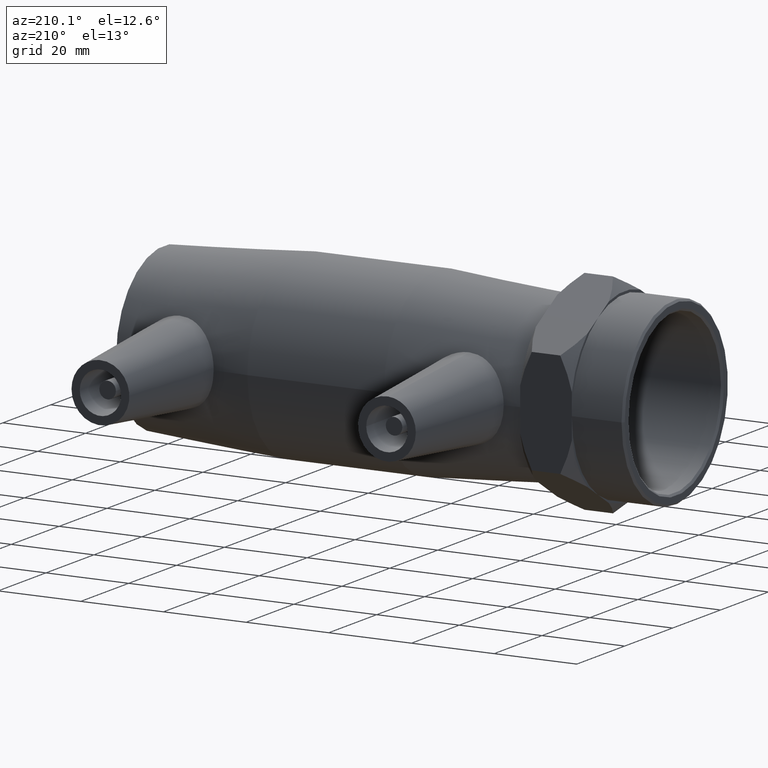
[diagram: clean part render]
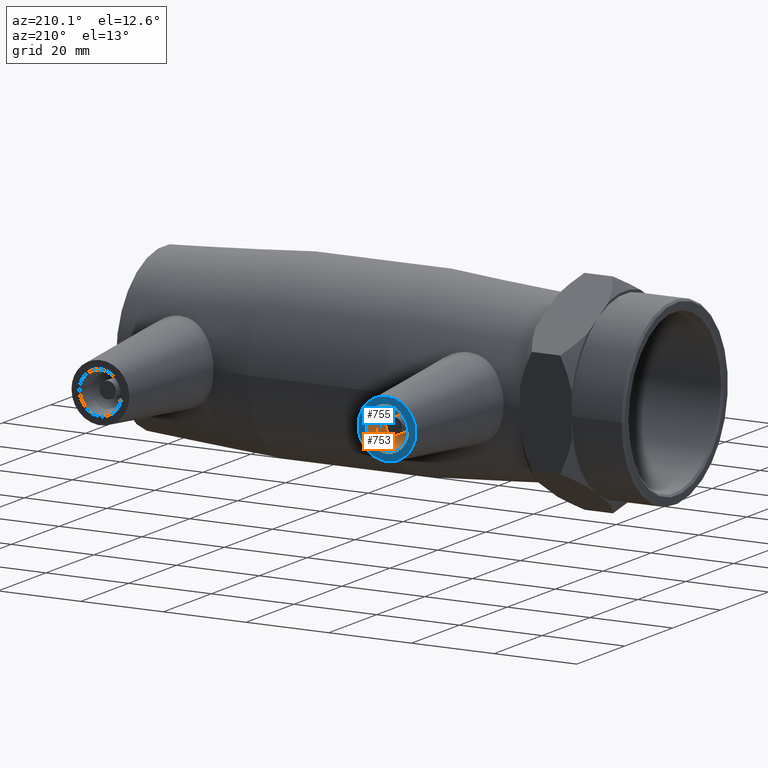
[diagram: same view with the hole feature highlighted: cylindrical wall and planar end face, labeled with their STEP entity ids]
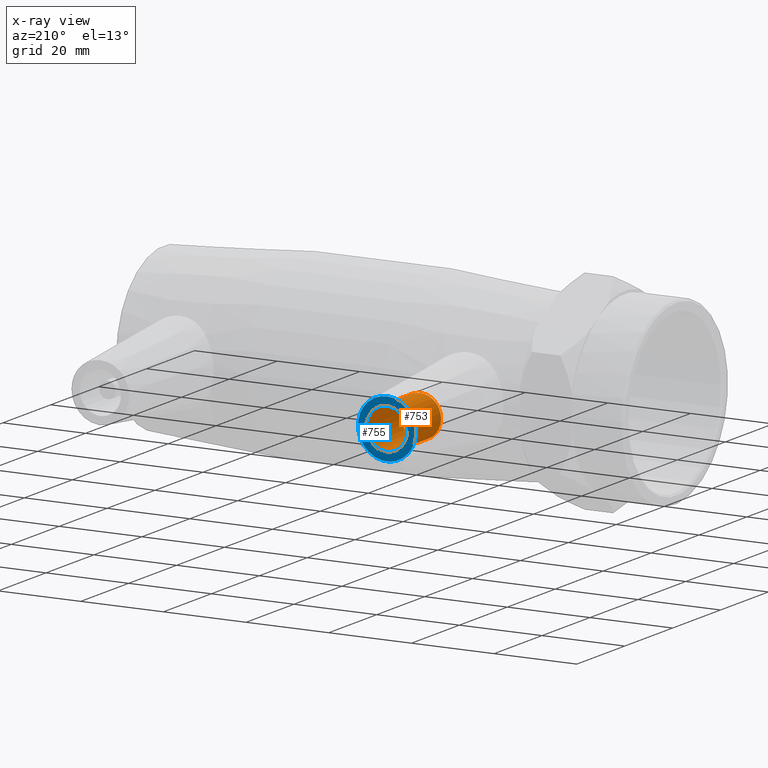
[diagram: x-ray of the same camera — body ghosted, the hole faces saturated]
A machine part, auxiliary view. The highlighted faces form one hole feature of diameter 10 mm: the cylindrical wall (entity #753, orange) and its adjacent planar end face (entity #755, blue) — they share a circular edge in the B-rep.
The next image is the same camera in x-ray (body ghosted, the hole faces saturated) — the bore reads through the body.
Wall:
#96=CYLINDRICAL_SURFACE('',#845,5.);
#138=FACE_BOUND('',#264,.T.);
#194=FACE_OUTER_BOUND('',#263,.T.);
#263=EDGE_LOOP('',(#664));
#264=EDGE_LOOP('',(#665));
#327=CIRCLE('',#846,5.);
#328=CIRCLE('',#847,5.);
#396=VERTEX_POINT('',#1326);
#397=VERTEX_POINT('',#1328);
#491=EDGE_CURVE('',#396,#396,#327,.T.);
#492=EDGE_CURVE('',#397,#397,#328,.T.);
#664=ORIENTED_EDGE('',*,*,#491,.T.);
#665=ORIENTED_EDGE('',*,*,#492,.F.);
#753=ADVANCED_FACE('',(#194,#138),#96,.F.);
#845=AXIS2_PLACEMENT_3D('',#1325,#1047,#1048);
#846=AXIS2_PLACEMENT_3D('',#1327,#1049,#1050);
#847=AXIS2_PLACEMENT_3D('',#1329,#1051,#1052);
#1047=DIRECTION('center_axis',(0.,-1.,0.));
#1048=DIRECTION('ref_axis',(-1.,0.,0.));
#1049=DIRECTION('center_axis',(0.,-1.,0.));
#1050=DIRECTION('ref_axis',(-1.,0.,0.));
#1051=DIRECTION('center_axis',(0.,-1.,0.));
#1052=DIRECTION('ref_axis',(-1.,0.,0.));
#1325=CARTESIAN_POINT('Origin',(-34.65,52.,0.));
#1326=CARTESIAN_POINT('',(-29.65,38.,-6.12323399573677E-16));
#1327=CARTESIAN_POINT('Origin',(-34.65,38.,0.));
#1328=CARTESIAN_POINT('',(-29.65,52.,-6.12323399573677E-16));
#1329=CARTESIAN_POINT('Origin',(-34.65,52.,0.));
End face:
#119=PLANE('',#849);
#140=FACE_BOUND('',#268,.T.);
#196=FACE_OUTER_BOUND('',#267,.T.);
#267=EDGE_LOOP('',(#668));
#268=EDGE_LOOP('',(#669));
#328=CIRCLE('',#847,5.);
#329=CIRCLE('',#850,7.);
#397=VERTEX_POINT('',#1328);
#398=VERTEX_POINT('',#1332);
#492=EDGE_CURVE('',#397,#397,#328,.T.);
#493=EDGE_CURVE('',#398,#398,#329,.T.);
#668=ORIENTED_EDGE('',*,*,#493,.F.);
#669=ORIENTED_EDGE('',*,*,#492,.T.);
#755=ADVANCED_FACE('',(#196,#140),#119,.T.);
#847=AXIS2_PLACEMENT_3D('',#1329,#1051,#1052);
#849=AXIS2_PLACEMENT_3D('',#1331,#1055,#1056);
#850=AXIS2_PLACEMENT_3D('',#1333,#1057,#1058);
#1051=DIRECTION('center_axis',(0.,-1.,0.));
#1052=DIRECTION('ref_axis',(-1.,0.,0.));
#1055=DIRECTION('center_axis',(0.,1.,0.));
#1056=DIRECTION('ref_axis',(0.,0.,1.));
#1057=DIRECTION('center_axis',(0.,-1.,0.));
#1058=DIRECTION('ref_axis',(1.,0.,0.));
#1328=CARTESIAN_POINT('',(-29.65,52.,-6.12323399573677E-16));
#1329=CARTESIAN_POINT('Origin',(-34.65,52.,0.));
#1331=CARTESIAN_POINT('Origin',(-34.65,52.,1.32169407693471E-16));
#1332=CARTESIAN_POINT('',(-41.65,52.,8.57252759403147E-16));
#1333=CARTESIAN_POINT('Origin',(-34.65,52.,0.));